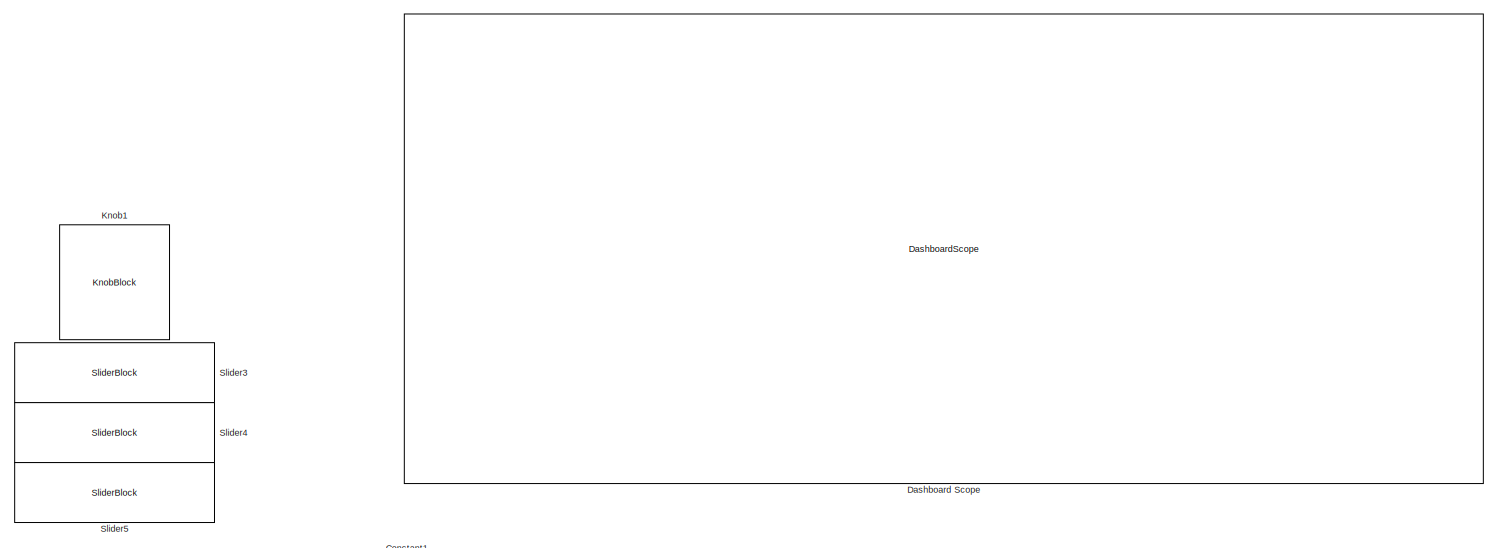
[diagram: root canvas - part 1/3, full width, middle band]
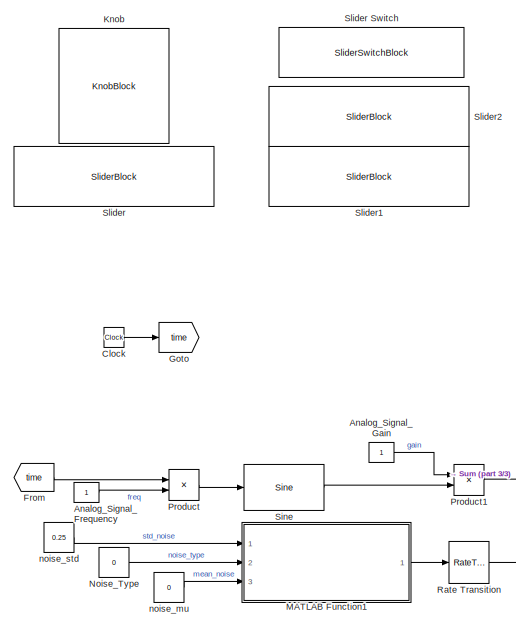
[diagram: root canvas - part 2/3, left side, full height]
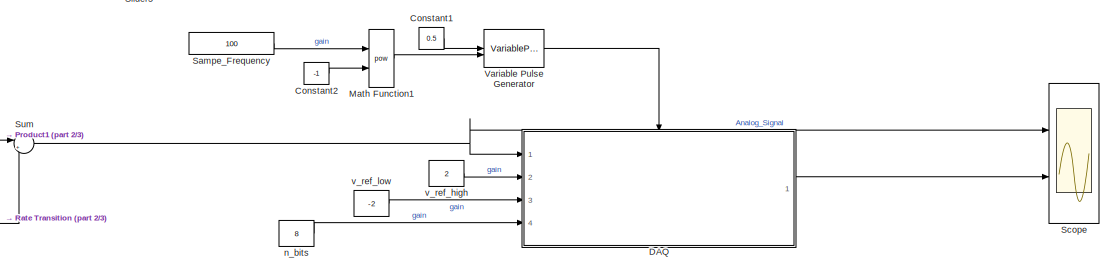
[diagram: root canvas - part 3/3, bottom center region]
MODEL slx_98dd0d779d98
KIND model
CONFIG AbsTol = auto
CONFIG EnableMultiTasking = off
CONFIG FixedStep = 0.0001
CONFIG MaxStep = auto
CONFIG MinStep = auto
CONFIG RelTol = 1e-3
CONFIG SampleTimeConstraint = Unconstrained
CONFIG SolverName = FixedStepAuto
CONFIG StartTime = 0.0
CONFIG StopTime = 10
WORKSPACE source: mxarray member
WORKSPACE Analog_Amplitude = 1
WORKSPACE Analog_Frequncy = 1
BLOCK [Constant] Analog_Signal_Frequency
BLOCK [Constant] Analog_Signal_Gain
BLOCK [Clock] Clock
BLOCK [Constant] Constant1
  Value = 0.5
BLOCK [Constant] Constant2
  Value = -1
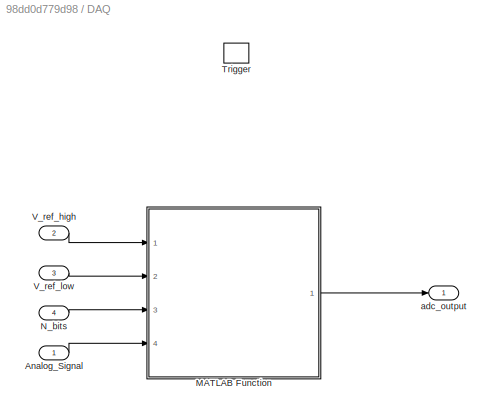
BLOCK [SubSystem] DAQ
  Ports = [4, 1, 0, 1]
  RequestExecContextInheritance = off
BLOCK [Inport] DAQ/Analog_Signal
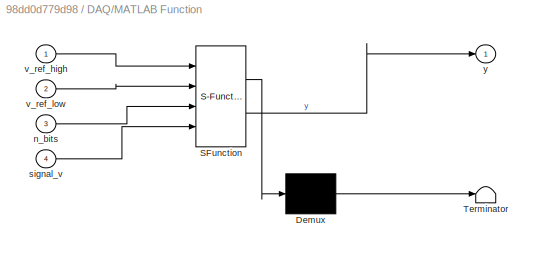
BLOCK [SubSystem] DAQ/MATLAB Function
  ErrorFcn = Stateflow.Translate.translate
  PermitHierarchicalResolution = ExplicitOnly
  Ports = [4, 1]
  RequestExecContextInheritance = off
  SFBlockType = MATLAB Function
  TreatAsAtomicUnit = on
BLOCK [Demux] DAQ/MATLAB Function/ Demux 
  Outputs = 1
  Ports = [1, 1]
BLOCK [S-Function] DAQ/MATLAB Function/ SFunction 
  EnableBusSupport = on
  FunctionName = sf_sfun
  PortCounts = [4 2]
  Ports = [4, 2]
  SFcnIsStateOwnerBlock = off
  SFunctionDeploymentMode = off
  Tag = Stateflow S-Function 2
BLOCK [Terminator] DAQ/MATLAB Function/ Terminator 
BLOCK [Inport] DAQ/MATLAB Function/n_bits
  Port = 3
BLOCK [Inport] DAQ/MATLAB Function/signal_v
  Port = 4
BLOCK [Inport] DAQ/MATLAB Function/v_ref_high
BLOCK [Inport] DAQ/MATLAB Function/v_ref_low
  Port = 2
BLOCK [Outport] DAQ/MATLAB Function/y
BLOCK [Inport] DAQ/N_bits
  Port = 4
BLOCK [TriggerPort] DAQ/Trigger
  PortDimensions = 1
  Ports = []
  StatesWhenEnabling = held
  VariantControl = Variant
BLOCK [Inport] DAQ/V_ref_high
  Port = 2
BLOCK [Inport] DAQ/V_ref_low
  Port = 3
BLOCK [Outport] DAQ/adc_output
BLOCK [DashboardScope] Dashboard Scope
  Ymax = 10
  Ymin = -10
BLOCK [From] From
  GotoTag = time
BLOCK [Goto] Goto
  GotoTag = time
BLOCK [KnobBlock] Knob
  ScaleMax = 10000
  ScaleMin = 1
  ScaleType = Log
BLOCK [KnobBlock] Knob1
  ScaleMax = 10000
  ScaleMin = 1
  ScaleType = Log
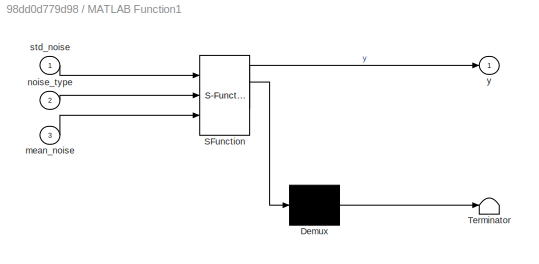
BLOCK [SubSystem] MATLAB Function1
  ErrorFcn = Stateflow.Translate.translate
  PermitHierarchicalResolution = ExplicitOnly
  Ports = [3, 1]
  RequestExecContextInheritance = off
  SFBlockType = MATLAB Function
  TreatAsAtomicUnit = on
BLOCK [Demux] MATLAB Function1/ Demux 
  Outputs = 1
  Ports = [1, 1]
BLOCK [S-Function] MATLAB Function1/ SFunction 
  EnableBusSupport = on
  FunctionName = sf_sfun
  PortCounts = [3 2]
  Ports = [3, 2]
  SFcnIsStateOwnerBlock = off
  SFunctionDeploymentMode = off
  Tag = Stateflow S-Function 1
BLOCK [Terminator] MATLAB Function1/ Terminator 
BLOCK [Inport] MATLAB Function1/mean_noise
  Port = 3
BLOCK [Inport] MATLAB Function1/noise_type
  Port = 2
BLOCK [Inport] MATLAB Function1/std_noise
BLOCK [Outport] MATLAB Function1/y
BLOCK [Math] Math Function1
  Operator = pow
  Ports = [2, 1]
BLOCK [Constant] Noise_Type
  Value = 0
BLOCK [Product] Product
  Ports = [2, 1]
BLOCK [Product] Product1
  Ports = [2, 1]
BLOCK [RateTransition] Rate Transition
  Commented = through
  OutPortSampleTime = 0.008
BLOCK [Constant] Sampe_Frequency
  Value = 100
BLOCK [Scope] Scope
  Floating = off
  NumInputPorts = 2
  Ports = [2]
  ScopeSpecificationString = Simulink.scopes.TimeScopeBlockCfg('CurrentConfiguration', extmgr.ConfigurationSet(extmgr.Configuration('Core','General UI',true),extmgr.Configuration('Core','Source UI',true),extmgr.Configuration('Sources','WiredSimulink',true),extmgr.Configuration('Visuals','Time Domain',true,'SerializedDisplays',{struct('MinYLimReal','-2.47753','MaxYLimReal','2.51462','YLabelReal','','MinYLimMag','0.00000','MaxY...<+1364ch>
BLOCK [Reference] Sine  REF=simulink/Lookup
Tables/Sine
  Ports = [1, 1]
  SourceBlock = simulink/Lookup\nTables/Sine
  SourceProductBaseCode = SL
  SourceType = Sine and Cosine
BLOCK [SliderBlock] Slider
  ScaleMax = 10
BLOCK [SliderSwitchBlock] Slider Switch
BLOCK [SliderBlock] Slider1
  ScaleMax = .5
BLOCK [SliderBlock] Slider2
  ScaleMax = 1
BLOCK [SliderBlock] Slider3
  ScaleMax = 10
BLOCK [SliderBlock] Slider4
  ScaleMax = 0
  ScaleMin = -10
BLOCK [SliderBlock] Slider5
  ScaleMax = 10
BLOCK [Sum] Sum
  Inputs = |++
  Ports = [2, 1]
BLOCK [VariablePulseGenerator] Variable Pulse Generator
  RunAtFixedTimeIntervals = on
  SampleTime = 0.0001
BLOCK [Constant] n_bits
  Value = 8
BLOCK [Constant] noise_mu
  Value = 0
BLOCK [Constant] noise_std
  Value = 0.25
BLOCK [Constant] v_ref_high
  Value = 2
BLOCK [Constant] v_ref_low
  Value = -2
LINE Analog_Signal_Frequency:1 -> Product:2
LINE Analog_Signal_Gain:1 -> Product1:1
LINE Clock:1 -> Goto:1
LINE Constant1:1 -> Variable Pulse Generator:1
LINE Constant2:1 -> Math Function1:2
LINE DAQ/Analog_Signal:1 -> DAQ/MATLAB Function:4
LINE DAQ/MATLAB Function:1 -> DAQ/adc_output:1
LINE DAQ/N_bits:1 -> DAQ/MATLAB Function:3
LINE DAQ/V_ref_high:1 -> DAQ/MATLAB Function:1
LINE DAQ/V_ref_low:1 -> DAQ/MATLAB Function:2
LINE DAQ:1 -> Scope:2
LINE From:1 -> Product:1
LINE MATLAB Function1:1 -> Rate Transition:1
LINE Math Function1:1 -> Variable Pulse Generator:2
LINE Noise_Type:1 -> MATLAB Function1:2
LINE Product1:1 -> Sum:1
LINE Product:1 -> Sine:1
LINE Rate Transition:1 -> Sum:2
LINE Sampe_Frequency:1 -> Math Function1:1
LINE Sine:1 -> Product1:2
NET Sum:1 -> DAQ:1, Scope:1
LINE Variable Pulse Generator:1 -> DAQ:trigger
LINE n_bits:1 -> DAQ:4
LINE noise_mu:1 -> MATLAB Function1:3
LINE noise_std:1 -> MATLAB Function1:1
LINE v_ref_high:1 -> DAQ:2
LINE v_ref_low:1 -> DAQ:3
note: NET lines group one-source signal fan-out (src -> all destinations, sorted); 1:1 wires keep LINE
CHART MATLAB Function1 states=1 transitions=1
  STATE_LABEL 'eML_blk_kernel()'
  STATE_LABEL 'SCRIPT:\nfunction y = random_noise(std_noise, noise_type, mean_noise)\nif noise_type == 0\n    y = normrnd(mean_noise, std_noise);\nelse\n    y = rand() * std_noise + mean_noise;\nend'
CHART DAQ/MATLAB Function states=1 transitions=1
  STATE_LABEL 'eML_blk_kernel()'
  STATE_LABEL 'SCRIPT:\nfunction y = daq(v_ref_high, v_ref_low, n_bits, signal_v)\nv_ref_high = v_ref_high + abs(v_ref_low);\nresolution = 2^n_bits;\ndelta = v_ref_high / resolution;\nbinary = zeros(resolution, 1);\nsignal_v = signal_v + abs(v_ref_low);\nfor i=1:resolution\n    comparator = v_ref_high - i * delta;\n    bit = signal_v >= comparator;\n    binary(i) = (bit * comparator);\n    if bit\n        signal_v = signal_...<+61ch>'
CHART  states=0 transitions=0
CHART  states=0 transitions=0
